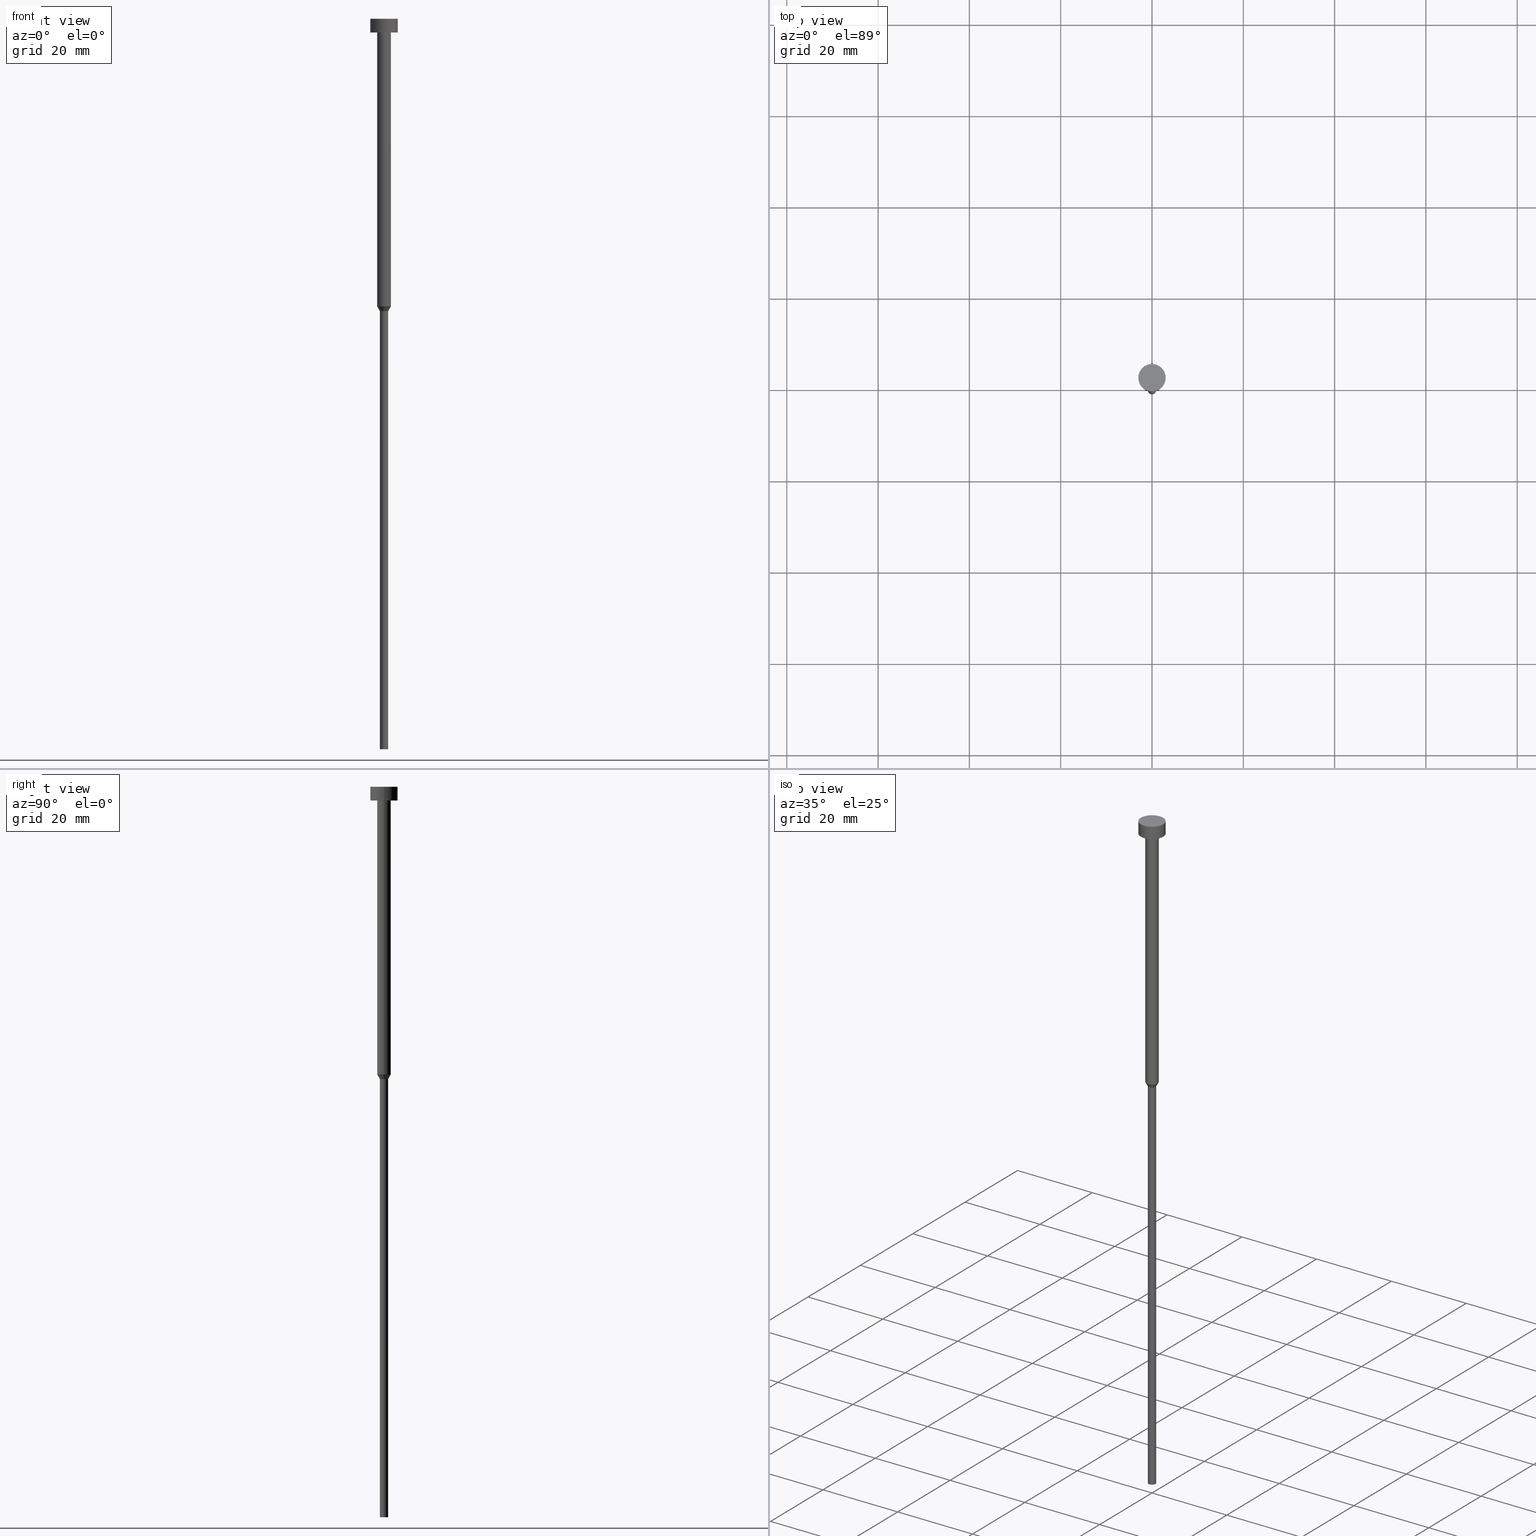
[diagram: canonical four-view strip — front | top / right | iso, engineering-drawing reading convention]
A machine part, canonical four-view strip (front | top / right | iso — engineering-drawing reading convention). The complete STEP part file that produces these views, byte-faithful:
ISO-10303-21;
HEADER;
FILE_DESCRIPTION (( 'STEP AP203' ),
    '1' );
FILE_NAME ('3f9a.STEP',
    '2023-02-13T10:01:51',
    ( '' ),
    ( '' ),
    'SwSTEP 2.0',
    'SolidWorks 2019',
    '' );
FILE_SCHEMA (( 'CONFIG_CONTROL_DESIGN' ));
ENDSEC;

DATA;
#1 = CARTESIAN_POINT ( 'NONE',  ( 0.000000000000000000, 0.000000000000000000, 0.000000000000000000 ) ) ;
#2 = CARTESIAN_POINT ( 'NONE',  ( -1.500000000000000000, 1.836970198721029934E-16, -63.00000000000000000 ) ) ;
#3 = DIRECTION ( 'NONE',  ( 1.000000000000000000, 0.000000000000000000, 0.000000000000000000 ) ) ;
#4 = PLANE ( 'NONE',  #282 ) ;
#5 = CARTESIAN_POINT ( 'NONE',  ( 3.000000000000000000, 0.000000000000000000, -3.673940397442059868E-16 ) ) ;
#6 = AXIS2_PLACEMENT_3D ( 'NONE', #308, #95, #64 ) ;
#7 = CARTESIAN_POINT ( 'NONE',  ( 1.500000000000000000, 0.000000000000000000, 0.000000000000000000 ) ) ;
#8 = DIRECTION ( 'NONE',  ( -0.000000000000000000, -0.000000000000000000, 1.000000000000000000 ) ) ;
#9 = VECTOR ( 'NONE', #40, 1000.000000000000000 ) ;
#10 = CARTESIAN_POINT ( 'NONE',  ( -3.000000000000000000, 3.673940397442059868E-16, -3.673940397442059868E-16 ) ) ;
#11 = EDGE_CURVE ( 'NONE', #339, #294, #260, .T. ) ;
#12 = PERSON_AND_ORGANIZATION ( #119, #302 ) ;
#13 = EDGE_LOOP ( 'NONE', ( #149, #151, #169, #100 ) ) ;
#14 = CIRCLE ( 'NONE', #62, 3.000000000000000000 ) ;
#15 = ORIENTED_EDGE ( 'NONE', *, *, #112, .F. ) ;
#16 = ORIENTED_EDGE ( 'NONE', *, *, #229, .T. ) ;
#17 = ADVANCED_FACE ( 'NONE', ( #180 ), #319, .T. ) ;
#18 = APPROVAL_STATUS ( 'not_yet_approved' ) ;
#19 = VERTEX_POINT ( 'NONE', #156 ) ;
#20 = VECTOR ( 'NONE', #86, 1000.000000000000227 ) ;
#21 = PERSON_AND_ORGANIZATION_ROLE ( 'classification_officer' ) ;
#22 = ORIENTED_EDGE ( 'NONE', *, *, #91, .T. ) ;
#23 = AXIS2_PLACEMENT_3D ( 'NONE', #30, #245, #273 ) ;
#24 = VERTEX_POINT ( 'NONE', #259 ) ;
#25 = PLANE ( 'NONE',  #181 ) ;
#26 = DIRECTION ( 'NONE',  ( 1.000000000000000000, 0.000000000000000000, 0.000000000000000000 ) ) ;
#27 = FACE_OUTER_BOUND ( 'NONE', #315, .T. ) ;
#28 = LINE ( 'NONE', #266, #303 ) ;
#29 = CIRCLE ( 'NONE', #185, 1.500000000000000000 ) ;
#30 = CARTESIAN_POINT ( 'NONE',  ( 0.000000000000000000, 0.000000000000000000, -64.03923048454132072 ) ) ;
#31 = ADVANCED_FACE ( 'NONE', ( #201 ), #118, .T. ) ;
#32 = CARTESIAN_POINT ( 'NONE',  ( 1.500000000000000000, 0.000000000000000000, -3.000000000000000888 ) ) ;
#33 =( NAMED_UNIT ( * ) SI_UNIT ( $, .STERADIAN. ) SOLID_ANGLE_UNIT ( ) );
#34 = CIRCLE ( 'NONE', #134, 0.9000000000000000222 ) ;
#35 = FACE_OUTER_BOUND ( 'NONE', #39, .T. ) ;
#36 = CYLINDRICAL_SURFACE ( 'NONE', #6, 0.9000000000000000222 ) ;
#37 = ORIENTED_EDGE ( 'NONE', *, *, #312, .F. ) ;
#38 = CARTESIAN_POINT ( 'NONE',  ( -1.500000000000000000, 1.836970198721029934E-16, 0.000000000000000000 ) ) ;
#39 = EDGE_LOOP ( 'NONE', ( #170, #41, #129, #106 ) ) ;
#40 = DIRECTION ( 'NONE',  ( -0.000000000000000000, -0.000000000000000000, 1.000000000000000000 ) ) ;
#41 = ORIENTED_EDGE ( 'NONE', *, *, #306, .T. ) ;
#42 = SECURITY_CLASSIFICATION_LEVEL ( 'unclassified' ) ;
#43 = EDGE_LOOP ( 'NONE', ( #75, #342 ) ) ;
#44 = DATE_AND_TIME ( #341, #280 ) ;
#45 = EDGE_LOOP ( 'NONE', ( #105, #224 ) ) ;
#46 = EDGE_CURVE ( 'NONE', #166, #323, #235, .T. ) ;
#47 = APPROVAL_STATUS ( 'not_yet_approved' ) ;
#48 = DIRECTION ( 'NONE',  ( 1.000000000000000000, 0.000000000000000000, 0.000000000000000000 ) ) ;
#49 = PRODUCT_DEFINITION ( 'NEZN�M�', '', #338, #263 ) ;
#50 = CC_DESIGN_PERSON_AND_ORGANIZATION_ASSIGNMENT ( #80, #21, ( #206 ) ) ;
#51 = DIRECTION ( 'NONE',  ( -0.000000000000000000, -0.000000000000000000, 1.000000000000000000 ) ) ;
#52 = UNCERTAINTY_MEASURE_WITH_UNIT (LENGTH_MEASURE( 1.000000000000000082E-05 ), #70, 'distance_accuracy_value', 'NONE');
#53 = EDGE_CURVE ( 'NONE', #321, #205, #271, .T. ) ;
#54 = AXIS2_PLACEMENT_3D ( 'NONE', #220, #334, #142 ) ;
#55 = CARTESIAN_POINT ( 'NONE',  ( 0.9000000000000000222, 0.000000000000000000, -160.0000000000000000 ) ) ;
#56 = AXIS2_PLACEMENT_3D ( 'NONE', #1, #161, #110 ) ;
#57 = DIRECTION ( 'NONE',  ( -0.000000000000000000, -0.000000000000000000, 1.000000000000000000 ) ) ;
#58 = AXIS2_PLACEMENT_3D ( 'NONE', #173, #264, #288 ) ;
#59 = CARTESIAN_POINT ( 'NONE',  ( 0.000000000000000000, 0.000000000000000000, -63.00000000000000000 ) ) ;
#60 = CARTESIAN_POINT ( 'NONE',  ( 0.000000000000000000, 0.000000000000000000, -3.000000000000000888 ) ) ;
#61 = ADVANCED_FACE ( 'NONE', ( #158, #157 ), #300, .T. ) ;
#62 = AXIS2_PLACEMENT_3D ( 'NONE', #113, #215, #331 ) ;
#63 = DIRECTION ( 'NONE',  ( -0.000000000000000000, -0.000000000000000000, 1.000000000000000000 ) ) ;
#64 = DIRECTION ( 'NONE',  ( 1.000000000000000000, 0.000000000000000000, 0.000000000000000000 ) ) ;
#65 = LINE ( 'NONE', #7, #66 ) ;
#66 = VECTOR ( 'NONE', #221, 1000.000000000000000 ) ;
#67 = CYLINDRICAL_SURFACE ( 'NONE', #54, 0.9000000000000000222 ) ;
#68 = AXIS2_PLACEMENT_3D ( 'NONE', #327, #211, #184 ) ;
#69 = CC_DESIGN_DATE_AND_TIME_ASSIGNMENT ( #148, #314, ( #49 ) ) ;
#70 =( LENGTH_UNIT ( ) NAMED_UNIT ( * ) SI_UNIT ( .MILLI., .METRE. ) );
#71 = ORIENTED_EDGE ( 'NONE', *, *, #152, .T. ) ;
#72 = ADVANCED_FACE ( 'NONE', ( #85 ), #4, .T. ) ;
#73 = EDGE_LOOP ( 'NONE', ( #16, #232 ) ) ;
#74 = DATE_TIME_ROLE ( 'classification_date' ) ;
#75 = ORIENTED_EDGE ( 'NONE', *, *, #91, .F. ) ;
#76 = COORDINATED_UNIVERSAL_TIME_OFFSET ( 1, 0, .AHEAD. ) ;
#77 = ORIENTED_EDGE ( 'NONE', *, *, #265, .T. ) ;
#78 = AXIS2_PLACEMENT_3D ( 'NONE', #138, #51, #328 ) ;
#79 = AXIS2_PLACEMENT_3D ( 'NONE', #198, #125, #48 ) ;
#80 = PERSON_AND_ORGANIZATION ( #119, #302 ) ;
#81 = ORIENTED_EDGE ( 'NONE', *, *, #312, .T. ) ;
#82 = CALENDAR_DATE ( 2023, 13, 2 ) ;
#83 = CARTESIAN_POINT ( 'NONE',  ( -3.000000000000000000, 3.673940397442059868E-16, 0.000000000000000000 ) ) ;
#84 = LOCAL_TIME ( 11, 1, 51.00000000000000000, #238 ) ;
#85 = FACE_OUTER_BOUND ( 'NONE', #43, .T. ) ;
#86 = DIRECTION ( 'NONE',  ( -0.5000000000000002220, 6.123233995736768501E-17, 0.8660254037844384856 ) ) ;
#87 = VECTOR ( 'NONE', #63, 1000.000000000000000 ) ;
#88 = FACE_OUTER_BOUND ( 'NONE', #175, .T. ) ;
#89 = CARTESIAN_POINT ( 'NONE',  ( 3.000000000000000000, 0.000000000000000000, 0.000000000000000000 ) ) ;
#90 = DIRECTION ( 'NONE',  ( -1.000000000000000000, 0.000000000000000000, -0.000000000000000000 ) ) ;
#91 = EDGE_CURVE ( 'NONE', #205, #321, #349, .T. ) ;
#92 = DIRECTION ( 'NONE',  ( 1.000000000000000000, 0.000000000000000000, 0.000000000000000000 ) ) ;
#93 = VECTOR ( 'NONE', #249, 1000.000000000000000 ) ;
#94 = FACE_OUTER_BOUND ( 'NONE', #262, .T. ) ;
#95 = DIRECTION ( 'NONE',  ( -0.000000000000000000, -0.000000000000000000, 1.000000000000000000 ) ) ;
#96 = CLOSED_SHELL ( 'NONE', ( #168, #317, #31, #352, #72, #255, #189, #17, #61, #276, #121 ) ) ;
#97 = APPROVAL_PERSON_ORGANIZATION ( #196, #223, #202 ) ;
#98 = DIRECTION ( 'NONE',  ( -0.000000000000000000, -0.000000000000000000, 1.000000000000000000 ) ) ;
#99 = CALENDAR_DATE ( 2023, 13, 2 ) ;
#100 = ORIENTED_EDGE ( 'NONE', *, *, #109, .F. ) ;
#101 = DIRECTION ( 'NONE',  ( 1.000000000000000000, 0.000000000000000000, 0.000000000000000000 ) ) ;
#102 = ORIENTED_EDGE ( 'NONE', *, *, #171, .F. ) ;
#103 = COORDINATED_UNIVERSAL_TIME_OFFSET ( 1, 0, .AHEAD. ) ;
#104 = VERTEX_POINT ( 'NONE', #187 ) ;
#105 = ORIENTED_EDGE ( 'NONE', *, *, #213, .T. ) ;
#106 = ORIENTED_EDGE ( 'NONE', *, *, #324, .F. ) ;
#107 = CC_DESIGN_SECURITY_CLASSIFICATION ( #206, ( #338 ) ) ;
#108 = CARTESIAN_POINT ( 'NONE',  ( 0.000000000000000000, -3.000000000000000000, -3.000000000000000888 ) ) ;
#109 = EDGE_CURVE ( 'NONE', #19, #127, #332, .T. ) ;
#110 = DIRECTION ( 'NONE',  ( 1.000000000000000000, 0.000000000000000000, 0.000000000000000000 ) ) ;
#111 = DIRECTION ( 'NONE',  ( 1.000000000000000000, 0.000000000000000000, 0.000000000000000000 ) ) ;
#112 = EDGE_CURVE ( 'NONE', #104, #290, #190, .T. ) ;
#113 = CARTESIAN_POINT ( 'NONE',  ( 0.000000000000000000, 0.000000000000000000, -3.673940397442059868E-16 ) ) ;
#114 = CYLINDRICAL_SURFACE ( 'NONE', #199, 3.000000000000000000 ) ;
#115 = CC_DESIGN_PERSON_AND_ORGANIZATION_ASSIGNMENT ( #172, #227, ( #338 ) ) ;
#116 = EDGE_CURVE ( 'NONE', #127, #24, #28, .T. ) ;
#117 = CARTESIAN_POINT ( 'NONE',  ( 0.000000000000000000, 0.000000000000000000, -3.000000000000000888 ) ) ;
#118 = CONICAL_SURFACE ( 'NONE', #58, 1.500000000000000000, 0.5235987755982991487 ) ;
#119 = PERSON ( 'NEUR�EN�', 'NEUR�EN�', 'NEUR�EN�', ('NEUR�EN�'), ('NEUR�EN�'), ('NEUR�EN�') ) ;
#120 = CALENDAR_DATE ( 2023, 13, 2 ) ;
#121 = ADVANCED_FACE ( 'NONE', ( #298 ), #25, .T. ) ;
#122 = ORIENTED_EDGE ( 'NONE', *, *, #217, .F. ) ;
#123 = PERSON_AND_ORGANIZATION_ROLE ( 'design_owner' ) ;
#124 = ORIENTED_EDGE ( 'NONE', *, *, #11, .F. ) ;
#125 = DIRECTION ( 'NONE',  ( -0.000000000000000000, -0.000000000000000000, 1.000000000000000000 ) ) ;
#126 = DATE_AND_TIME ( #82, #267 ) ;
#127 = VERTEX_POINT ( 'NONE', #355 ) ;
#128 = AXIS2_PLACEMENT_3D ( 'NONE', #248, #160, #295 ) ;
#129 = ORIENTED_EDGE ( 'NONE', *, *, #229, .F. ) ;
#130 = DIRECTION ( 'NONE',  ( 0.000000000000000000, -0.000000000000000000, 1.000000000000000000 ) ) ;
#131 = DIRECTION ( 'NONE',  ( 0.5000000000000002220, 0.000000000000000000, 0.8660254037844384856 ) ) ;
#132 = CC_DESIGN_DATE_AND_TIME_ASSIGNMENT ( #44, #74, ( #206 ) ) ;
#133 = CARTESIAN_POINT ( 'NONE',  ( -0.9000000000000000222, 1.102182119232617788E-16, 0.000000000000000000 ) ) ;
#134 = AXIS2_PLACEMENT_3D ( 'NONE', #307, #253, #141 ) ;
#135 = CYLINDRICAL_SURFACE ( 'NONE', #56, 3.000000000000000000 ) ;
#136 = APPLICATION_CONTEXT ( 'configuration controlled 3d designs of mechanical parts and assemblies' ) ;
#137 = APPROVAL_PERSON_ORGANIZATION ( #150, #275, #234 ) ;
#138 = CARTESIAN_POINT ( 'NONE',  ( 0.000000000000000000, 0.000000000000000000, -3.000000000000000888 ) ) ;
#139 = FACE_OUTER_BOUND ( 'NONE', #305, .T. ) ;
#140 = CARTESIAN_POINT ( 'NONE',  ( 0.000000000000000000, 0.000000000000000000, -63.00000000000000000 ) ) ;
#141 = DIRECTION ( 'NONE',  ( 1.000000000000000000, 0.000000000000000000, 0.000000000000000000 ) ) ;
#142 = DIRECTION ( 'NONE',  ( 1.000000000000000000, 0.000000000000000000, 0.000000000000000000 ) ) ;
#143 = AXIS2_PLACEMENT_3D ( 'NONE', #108, #268, #272 ) ;
#144 = ORIENTED_EDGE ( 'NONE', *, *, #306, .F. ) ;
#145 = FACE_OUTER_BOUND ( 'NONE', #13, .T. ) ;
#146 = CIRCLE ( 'NONE', #274, 3.000000000000000000 ) ;
#147 = ORIENTED_EDGE ( 'NONE', *, *, #284, .F. ) ;
#148 = DATE_AND_TIME ( #200, #345 ) ;
#149 = ORIENTED_EDGE ( 'NONE', *, *, #152, .F. ) ;
#150 = PERSON_AND_ORGANIZATION ( #119, #302 ) ;
#151 = ORIENTED_EDGE ( 'NONE', *, *, #53, .T. ) ;
#152 = EDGE_CURVE ( 'NONE', #321, #19, #214, .T. ) ;
#153 = CARTESIAN_POINT ( 'NONE',  ( 0.000000000000000000, 0.000000000000000000, 0.000000000000000000 ) ) ;
#154 = ORIENTED_EDGE ( 'NONE', *, *, #243, .F. ) ;
#155 = APPROVAL_DATE_TIME ( #204, #309 ) ;
#156 = CARTESIAN_POINT ( 'NONE',  ( -0.9000000000000000222, 1.102182119232617788E-16, -64.03923048454132072 ) ) ;
#157 = FACE_OUTER_BOUND ( 'NONE', #177, .T. ) ;
#158 = FACE_BOUND ( 'NONE', #73, .T. ) ;
#159 = DIRECTION ( 'NONE',  ( 0.000000000000000000, 0.000000000000000000, -1.000000000000000000 ) ) ;
#160 = DIRECTION ( 'NONE',  ( -0.000000000000000000, -0.000000000000000000, 1.000000000000000000 ) ) ;
#161 = DIRECTION ( 'NONE',  ( -0.000000000000000000, -0.000000000000000000, 1.000000000000000000 ) ) ;
#162 = AXIS2_PLACEMENT_3D ( 'NONE', #330, #246, #3 ) ;
#163 = CARTESIAN_POINT ( 'NONE',  ( -0.9000000000000000222, 1.102182119232617788E-16, -160.0000000000000000 ) ) ;
#164 = LINE ( 'NONE', #38, #87 ) ;
#165 = PRODUCT_DEFINITION_SHAPE ( 'NONE', 'NONE',  #49 ) ;
#166 = VERTEX_POINT ( 'NONE', #244 ) ;
#167 = APPLICATION_PROTOCOL_DEFINITION ( 'international standard', 'config_control_design', 1994, #218 ) ;
#168 = ADVANCED_FACE ( 'NONE', ( #88 ), #135, .T. ) ;
#169 = ORIENTED_EDGE ( 'NONE', *, *, #243, .T. ) ;
#170 = ORIENTED_EDGE ( 'NONE', *, *, #182, .T. ) ;
#171 = EDGE_CURVE ( 'NONE', #19, #344, #186, .T. ) ;
#172 = PERSON_AND_ORGANIZATION ( #119, #302 ) ;
#173 = CARTESIAN_POINT ( 'NONE',  ( 0.000000000000000000, 0.000000000000000000, -63.00000000000000000 ) ) ;
#174 = PERSON_AND_ORGANIZATION ( #119, #302 ) ;
#175 = EDGE_LOOP ( 'NONE', ( #292, #311, #254, #203 ) ) ;
#176 = PERSON_AND_ORGANIZATION ( #119, #302 ) ;
#177 = EDGE_LOOP ( 'NONE', ( #353, #37 ) ) ;
#178 = PERSON_AND_ORGANIZATION_ROLE ( 'creator' ) ;
#179 = CC_DESIGN_APPROVAL ( #309, ( #206 ) ) ;
#180 = FACE_OUTER_BOUND ( 'NONE', #195, .T. ) ;
#181 = AXIS2_PLACEMENT_3D ( 'NONE', #270, #130, #242 ) ;
#182 = EDGE_CURVE ( 'NONE', #24, #344, #346, .T. ) ;
#183 = CARTESIAN_POINT ( 'NONE',  ( 0.000000000000000000, 0.000000000000000000, -160.0000000000000000 ) ) ;
#184 = DIRECTION ( 'NONE',  ( 1.000000000000000000, 0.000000000000000000, 0.000000000000000000 ) ) ;
#185 = AXIS2_PLACEMENT_3D ( 'NONE', #140, #98, #191 ) ;
#186 = LINE ( 'NONE', #2, #20 ) ;
#187 = CARTESIAN_POINT ( 'NONE',  ( -1.500000000000000000, 1.836970198721029934E-16, -3.000000000000000888 ) ) ;
#188 = DIRECTION ( 'NONE',  ( -0.000000000000000000, -0.000000000000000000, 1.000000000000000000 ) ) ;
#189 = ADVANCED_FACE ( 'NONE', ( #27 ), #329, .T. ) ;
#190 = CIRCLE ( 'NONE', #78, 1.500000000000000000 ) ;
#191 = DIRECTION ( 'NONE',  ( 1.000000000000000000, 0.000000000000000000, 0.000000000000000000 ) ) ;
#192 = CIRCLE ( 'NONE', #241, 1.500000000000000000 ) ;
#193 = CARTESIAN_POINT ( 'NONE',  ( 0.000000000000000000, 0.000000000000000000, -3.000000000000000888 ) ) ;
#194 = CYLINDRICAL_SURFACE ( 'NONE', #269, 1.500000000000000000 ) ;
#195 = EDGE_LOOP ( 'NONE', ( #144, #258, #239, #15 ) ) ;
#196 = PERSON_AND_ORGANIZATION ( #119, #302 ) ;
#197 = APPROVAL_DATE_TIME ( #293, #223 ) ;
#198 = CARTESIAN_POINT ( 'NONE',  ( 0.000000000000000000, 0.000000000000000000, 0.000000000000000000 ) ) ;
#199 = AXIS2_PLACEMENT_3D ( 'NONE', #301, #256, #92 ) ;
#200 = CALENDAR_DATE ( 2023, 13, 2 ) ;
#201 = FACE_OUTER_BOUND ( 'NONE', #351, .T. ) ;
#202 = APPROVAL_ROLE ( '' ) ;
#203 = ORIENTED_EDGE ( 'NONE', *, *, #46, .F. ) ;
#204 = DATE_AND_TIME ( #120, #84 ) ;
#205 = VERTEX_POINT ( 'NONE', #55 ) ;
#206 = SECURITY_CLASSIFICATION ( '', '', #42 ) ;
#207 = VECTOR ( 'NONE', #209, 1000.000000000000000 ) ;
#208 = DIRECTION ( 'NONE',  ( -0.000000000000000000, -0.000000000000000000, 1.000000000000000000 ) ) ;
#209 = DIRECTION ( 'NONE',  ( -0.000000000000000000, -0.000000000000000000, 1.000000000000000000 ) ) ;
#210 = EDGE_CURVE ( 'NONE', #166, #339, #146, .T. ) ;
#211 = DIRECTION ( 'NONE',  ( -0.000000000000000000, -0.000000000000000000, 1.000000000000000000 ) ) ;
#212 = MANIFOLD_SOLID_BREP ( 'Rotovat1', #96 ) ;
#213 = EDGE_CURVE ( 'NONE', #323, #294, #325, .T. ) ;
#214 = LINE ( 'NONE', #133, #207 ) ;
#215 = DIRECTION ( 'NONE',  ( -0.000000000000000000, -0.000000000000000000, 1.000000000000000000 ) ) ;
#216 = DIRECTION ( 'NONE',  ( 1.000000000000000000, 0.000000000000000000, 0.000000000000000000 ) ) ;
#217 = EDGE_CURVE ( 'NONE', #294, #323, #14, .T. ) ;
#218 = APPLICATION_CONTEXT ( 'configuration controlled 3d designs of mechanical parts and assemblies' ) ;
#219 = CARTESIAN_POINT ( 'NONE',  ( 0.000000000000000000, 0.000000000000000000, 0.000000000000000000 ) ) ;
#220 = CARTESIAN_POINT ( 'NONE',  ( 0.000000000000000000, 0.000000000000000000, 0.000000000000000000 ) ) ;
#221 = DIRECTION ( 'NONE',  ( -0.000000000000000000, -0.000000000000000000, 1.000000000000000000 ) ) ;
#222 = LINE ( 'NONE', #250, #93 ) ;
#223 = APPROVAL ( #291, 'NEUR�EN�' ) ;
#224 = ORIENTED_EDGE ( 'NONE', *, *, #217, .T. ) ;
#225 = CC_DESIGN_APPROVAL ( #275, ( #49 ) ) ;
#226 = AXIS2_PLACEMENT_3D ( 'NONE', #59, #188, #296 ) ;
#227 = PERSON_AND_ORGANIZATION_ROLE ( 'creator' ) ;
#228 = ORIENTED_EDGE ( 'NONE', *, *, #182, .F. ) ;
#229 = EDGE_CURVE ( 'NONE', #290, #104, #192, .T. ) ;
#230 = DIRECTION ( 'NONE',  ( 0.000000000000000000, 0.000000000000000000, 1.000000000000000000 ) ) ;
#231 = CIRCLE ( 'NONE', #278, 3.000000000000000000 ) ;
#232 = ORIENTED_EDGE ( 'NONE', *, *, #112, .T. ) ;
#233 = PRODUCT_RELATED_PRODUCT_CATEGORY ( 'detail', '', ( #281 ) ) ;
#234 = APPROVAL_ROLE ( '' ) ;
#235 = LINE ( 'NONE', #89, #252 ) ;
#236 =( GEOMETRIC_REPRESENTATION_CONTEXT ( 3 ) GLOBAL_UNCERTAINTY_ASSIGNED_CONTEXT ( ( #52 ) ) GLOBAL_UNIT_ASSIGNED_CONTEXT ( ( #70, #310, #33 ) ) REPRESENTATION_CONTEXT ( 'NONE', 'WORKASPACE' ) );
#237 = ADVANCED_BREP_SHAPE_REPRESENTATION ( '3f9a', ( #212, #354 ), #236 ) ;
#238 = COORDINATED_UNIVERSAL_TIME_OFFSET ( 1, 0, .AHEAD. ) ;
#239 = ORIENTED_EDGE ( 'NONE', *, *, #324, .T. ) ;
#240 = ORIENTED_EDGE ( 'NONE', *, *, #171, .T. ) ;
#241 = AXIS2_PLACEMENT_3D ( 'NONE', #117, #337, #283 ) ;
#242 = DIRECTION ( 'NONE',  ( 1.000000000000000000, 0.000000000000000000, 0.000000000000000000 ) ) ;
#243 = EDGE_CURVE ( 'NONE', #205, #127, #222, .T. ) ;
#244 = CARTESIAN_POINT ( 'NONE',  ( 3.000000000000000000, 0.000000000000000000, -3.000000000000000888 ) ) ;
#245 = DIRECTION ( 'NONE',  ( -0.000000000000000000, -0.000000000000000000, 1.000000000000000000 ) ) ;
#246 = DIRECTION ( 'NONE',  ( -0.000000000000000000, -0.000000000000000000, 1.000000000000000000 ) ) ;
#247 = APPROVAL_PERSON_ORGANIZATION ( #322, #309, #261 ) ;
#248 = CARTESIAN_POINT ( 'NONE',  ( 0.000000000000000000, 0.000000000000000000, -160.0000000000000000 ) ) ;
#249 = DIRECTION ( 'NONE',  ( -0.000000000000000000, -0.000000000000000000, 1.000000000000000000 ) ) ;
#250 = CARTESIAN_POINT ( 'NONE',  ( 0.9000000000000000222, 0.000000000000000000, 0.000000000000000000 ) ) ;
#251 = CC_DESIGN_PERSON_AND_ORGANIZATION_ASSIGNMENT ( #176, #178, ( #49 ) ) ;
#252 = VECTOR ( 'NONE', #208, 1000.000000000000000 ) ;
#253 = DIRECTION ( 'NONE',  ( -0.000000000000000000, -0.000000000000000000, 1.000000000000000000 ) ) ;
#254 = ORIENTED_EDGE ( 'NONE', *, *, #213, .F. ) ;
#255 = ADVANCED_FACE ( 'NONE', ( #145 ), #67, .T. ) ;
#256 = DIRECTION ( 'NONE',  ( -0.000000000000000000, -0.000000000000000000, 1.000000000000000000 ) ) ;
#257 = ORIENTED_EDGE ( 'NONE', *, *, #265, .F. ) ;
#258 = ORIENTED_EDGE ( 'NONE', *, *, #284, .T. ) ;
#259 = CARTESIAN_POINT ( 'NONE',  ( 1.500000000000000000, 0.000000000000000000, -63.00000000000000000 ) ) ;
#260 = LINE ( 'NONE', #83, #9 ) ;
#261 = APPROVAL_ROLE ( '' ) ;
#262 = EDGE_LOOP ( 'NONE', ( #124, #81, #285, #122 ) ) ;
#263 = DESIGN_CONTEXT ( 'detailed design', #136, 'design' ) ;
#264 = DIRECTION ( 'NONE',  ( -0.000000000000000000, -0.000000000000000000, 1.000000000000000000 ) ) ;
#265 = EDGE_CURVE ( 'NONE', #127, #19, #34, .T. ) ;
#266 = CARTESIAN_POINT ( 'NONE',  ( 1.500000000000000000, 0.000000000000000000, -63.00000000000000000 ) ) ;
#267 = LOCAL_TIME ( 11, 1, 51.00000000000000000, #76 ) ;
#268 = DIRECTION ( 'NONE',  ( 0.000000000000000000, 0.000000000000000000, -1.000000000000000000 ) ) ;
#269 = AXIS2_PLACEMENT_3D ( 'NONE', #219, #8, #216 ) ;
#270 = CARTESIAN_POINT ( 'NONE',  ( 0.000000000000000000, 0.000000000000000000, -1.836970198721029934E-16 ) ) ;
#271 = CIRCLE ( 'NONE', #299, 0.9000000000000000222 ) ;
#272 = DIRECTION ( 'NONE',  ( -1.000000000000000000, 0.000000000000000000, -0.000000000000000000 ) ) ;
#273 = DIRECTION ( 'NONE',  ( 1.000000000000000000, 0.000000000000000000, 0.000000000000000000 ) ) ;
#274 = AXIS2_PLACEMENT_3D ( 'NONE', #60, #297, #111 ) ;
#275 = APPROVAL ( #18, 'NEUR�EN�' ) ;
#276 = ADVANCED_FACE ( 'NONE', ( #94 ), #114, .T. ) ;
#277 = ORIENTED_EDGE ( 'NONE', *, *, #116, .F. ) ;
#278 = AXIS2_PLACEMENT_3D ( 'NONE', #193, #304, #335 ) ;
#279 = CARTESIAN_POINT ( 'NONE',  ( -1.500000000000000000, 1.836970198721029934E-16, -63.00000000000000000 ) ) ;
#280 = LOCAL_TIME ( 11, 1, 51.00000000000000000, #287 ) ;
#281 = PRODUCT ( '3f9a', '3f9a', '', ( #350 ) ) ;
#282 = AXIS2_PLACEMENT_3D ( 'NONE', #183, #159, #90 ) ;
#283 = DIRECTION ( 'NONE',  ( 1.000000000000000000, 0.000000000000000000, 0.000000000000000000 ) ) ;
#284 = EDGE_CURVE ( 'NONE', #344, #24, #29, .T. ) ;
#285 = ORIENTED_EDGE ( 'NONE', *, *, #46, .T. ) ;
#286 = LOCAL_TIME ( 11, 1, 51.00000000000000000, #318 ) ;
#287 = COORDINATED_UNIVERSAL_TIME_OFFSET ( 1, 0, .AHEAD. ) ;
#288 = DIRECTION ( 'NONE',  ( 1.000000000000000000, 0.000000000000000000, 0.000000000000000000 ) ) ;
#289 = PERSON_AND_ORGANIZATION_ROLE ( 'design_supplier' ) ;
#290 = VERTEX_POINT ( 'NONE', #32 ) ;
#291 = APPROVAL_STATUS ( 'not_yet_approved' ) ;
#292 = ORIENTED_EDGE ( 'NONE', *, *, #210, .T. ) ;
#293 = DATE_AND_TIME ( #99, #286 ) ;
#294 = VERTEX_POINT ( 'NONE', #10 ) ;
#295 = DIRECTION ( 'NONE',  ( 1.000000000000000000, 0.000000000000000000, 0.000000000000000000 ) ) ;
#296 = DIRECTION ( 'NONE',  ( 1.000000000000000000, 0.000000000000000000, 0.000000000000000000 ) ) ;
#297 = DIRECTION ( 'NONE',  ( -0.000000000000000000, -0.000000000000000000, 1.000000000000000000 ) ) ;
#298 = FACE_OUTER_BOUND ( 'NONE', #45, .T. ) ;
#299 = AXIS2_PLACEMENT_3D ( 'NONE', #326, #57, #26 ) ;
#300 = PLANE ( 'NONE',  #143 ) ;
#301 = CARTESIAN_POINT ( 'NONE',  ( 0.000000000000000000, 0.000000000000000000, 0.000000000000000000 ) ) ;
#302 = ORGANIZATION ( 'NEUR�EN�', 'NEUR�EN�', '' ) ;
#303 = VECTOR ( 'NONE', #131, 1000.000000000000227 ) ;
#304 = DIRECTION ( 'NONE',  ( -0.000000000000000000, -0.000000000000000000, 1.000000000000000000 ) ) ;
#305 = EDGE_LOOP ( 'NONE', ( #22, #71, #257, #154 ) ) ;
#306 = EDGE_CURVE ( 'NONE', #344, #104, #164, .T. ) ;
#307 = CARTESIAN_POINT ( 'NONE',  ( 0.000000000000000000, 0.000000000000000000, -64.03923048454132072 ) ) ;
#308 = CARTESIAN_POINT ( 'NONE',  ( 0.000000000000000000, 0.000000000000000000, 0.000000000000000000 ) ) ;
#309 = APPROVAL ( #47, 'NEUR�EN�' ) ;
#310 =( NAMED_UNIT ( * ) PLANE_ANGLE_UNIT ( ) SI_UNIT ( $, .RADIAN. ) );
#311 = ORIENTED_EDGE ( 'NONE', *, *, #11, .T. ) ;
#312 = EDGE_CURVE ( 'NONE', #339, #166, #231, .T. ) ;
#313 = ORIENTED_EDGE ( 'NONE', *, *, #109, .T. ) ;
#314 = DATE_TIME_ROLE ( 'creation_date' ) ;
#315 = EDGE_LOOP ( 'NONE', ( #102, #313, #348, #147 ) ) ;
#316 = CC_DESIGN_APPROVAL ( #223, ( #338 ) ) ;
#317 = ADVANCED_FACE ( 'NONE', ( #35 ), #194, .T. ) ;
#318 = COORDINATED_UNIVERSAL_TIME_OFFSET ( 1, 0, .AHEAD. ) ;
#319 = CYLINDRICAL_SURFACE ( 'NONE', #79, 1.500000000000000000 ) ;
#320 = CC_DESIGN_PERSON_AND_ORGANIZATION_ASSIGNMENT ( #12, #123, ( #281 ) ) ;
#321 = VERTEX_POINT ( 'NONE', #163 ) ;
#322 = PERSON_AND_ORGANIZATION ( #119, #302 ) ;
#323 = VERTEX_POINT ( 'NONE', #5 ) ;
#324 = EDGE_CURVE ( 'NONE', #24, #290, #65, .T. ) ;
#325 = CIRCLE ( 'NONE', #162, 3.000000000000000000 ) ;
#326 = CARTESIAN_POINT ( 'NONE',  ( 0.000000000000000000, 0.000000000000000000, -160.0000000000000000 ) ) ;
#327 = CARTESIAN_POINT ( 'NONE',  ( 0.000000000000000000, 0.000000000000000000, -63.00000000000000000 ) ) ;
#328 = DIRECTION ( 'NONE',  ( 1.000000000000000000, 0.000000000000000000, 0.000000000000000000 ) ) ;
#329 = CONICAL_SURFACE ( 'NONE', #68, 1.500000000000000000, 0.5235987755982991487 ) ;
#330 = CARTESIAN_POINT ( 'NONE',  ( 0.000000000000000000, 0.000000000000000000, -3.673940397442059868E-16 ) ) ;
#331 = DIRECTION ( 'NONE',  ( 1.000000000000000000, 0.000000000000000000, 0.000000000000000000 ) ) ;
#332 = CIRCLE ( 'NONE', #23, 0.9000000000000000222 ) ;
#333 = CC_DESIGN_PERSON_AND_ORGANIZATION_ASSIGNMENT ( #174, #289, ( #338 ) ) ;
#334 = DIRECTION ( 'NONE',  ( -0.000000000000000000, -0.000000000000000000, 1.000000000000000000 ) ) ;
#335 = DIRECTION ( 'NONE',  ( 1.000000000000000000, 0.000000000000000000, 0.000000000000000000 ) ) ;
#336 = CARTESIAN_POINT ( 'NONE',  ( -3.000000000000000000, 3.673940397442059868E-16, -3.000000000000000888 ) ) ;
#337 = DIRECTION ( 'NONE',  ( -0.000000000000000000, -0.000000000000000000, 1.000000000000000000 ) ) ;
#338 = PRODUCT_DEFINITION_FORMATION_WITH_SPECIFIED_SOURCE ( 'LIBOVOLN�', '', #281, .NOT_KNOWN. ) ;
#339 = VERTEX_POINT ( 'NONE', #336 ) ;
#340 = SHAPE_DEFINITION_REPRESENTATION ( #165, #237 ) ;
#341 = CALENDAR_DATE ( 2023, 13, 2 ) ;
#342 = ORIENTED_EDGE ( 'NONE', *, *, #53, .F. ) ;
#343 = APPLICATION_PROTOCOL_DEFINITION ( 'international standard', 'config_control_design', 1994, #136 ) ;
#344 = VERTEX_POINT ( 'NONE', #279 ) ;
#345 = LOCAL_TIME ( 11, 1, 51.00000000000000000, #103 ) ;
#346 = CIRCLE ( 'NONE', #226, 1.500000000000000000 ) ;
#347 = APPROVAL_DATE_TIME ( #126, #275 ) ;
#348 = ORIENTED_EDGE ( 'NONE', *, *, #116, .T. ) ;
#349 = CIRCLE ( 'NONE', #128, 0.9000000000000000222 ) ;
#350 = MECHANICAL_CONTEXT ( 'NONE', #218, 'mechanical' ) ;
#351 = EDGE_LOOP ( 'NONE', ( #77, #240, #228, #277 ) ) ;
#352 = ADVANCED_FACE ( 'NONE', ( #139 ), #36, .T. ) ;
#353 = ORIENTED_EDGE ( 'NONE', *, *, #210, .F. ) ;
#354 = AXIS2_PLACEMENT_3D ( 'NONE', #153, #230, #101 ) ;
#355 = CARTESIAN_POINT ( 'NONE',  ( 0.9000000000000000222, 0.000000000000000000, -64.03923048454132072 ) ) ;
ENDSEC;
END-ISO-10303-21;
